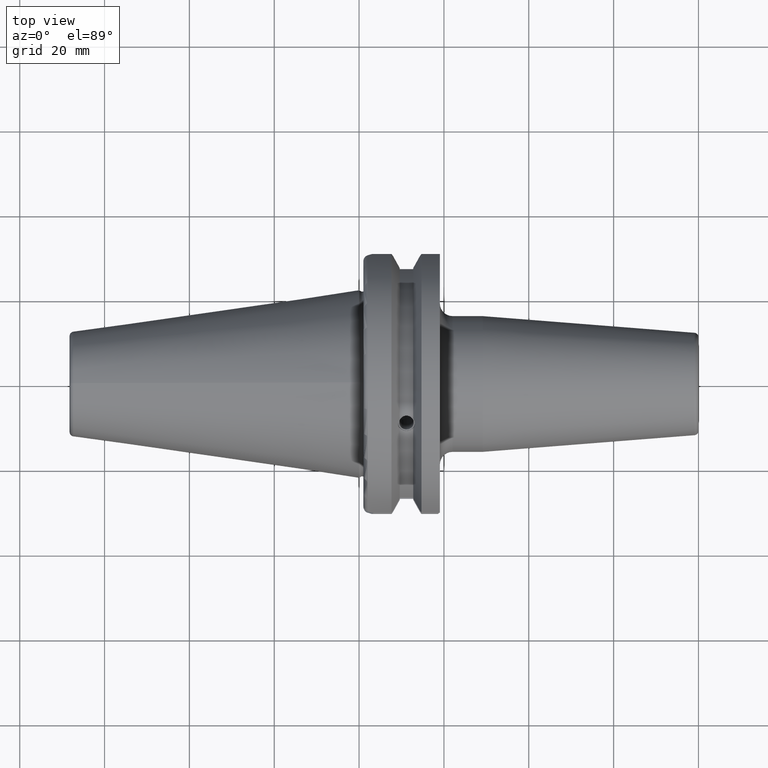
[diagram: clean part render]
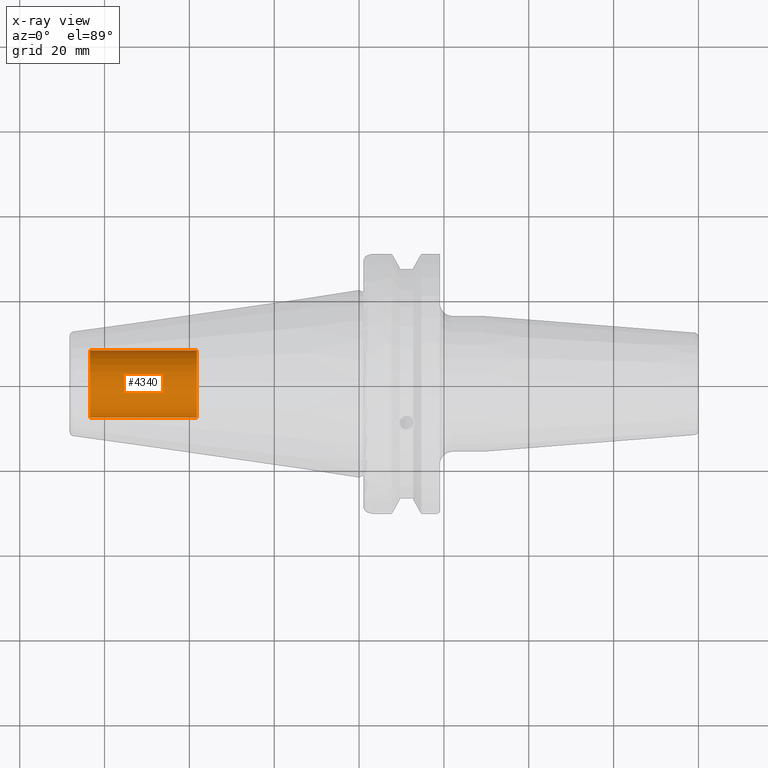
[diagram: x-ray — body ghosted, one internal face saturated and labeled with its STEP entity id]
A machine part, top view, then the same camera in x-ray: the body is ghosted and one INTERNAL B-rep face — a face not visible from any outside direction — is saturated and labeled: STEP entity #4340.
In plain terms, the highlighted cylindrical surface (edge-blend (fillet) strip) has radius 7.9375 mm, axis along (-1, 0, 0).
Its self-contained STEP definition (entity closure, byte-faithful):
#4266=CARTESIAN_POINT('',(-6.345E1,0.E0,0.E0));
#4267=DIRECTION('',(1.E0,0.E0,0.E0));
#4268=DIRECTION('',(0.E0,1.E0,0.E0));
#4269=AXIS2_PLACEMENT_3D('',#4266,#4267,#4268);
#4271=DIRECTION('',(1.E0,0.E0,0.E0));
#4272=VECTOR('',#4271,2.52E1);
#4273=CARTESIAN_POINT('',(-6.345E1,-7.9375E0,0.E0));
#4274=LINE('',#4273,#4272);
#4275=DIRECTION('',(1.E0,0.E0,0.E0));
#4276=VECTOR('',#4275,2.52E1);
#4277=CARTESIAN_POINT('',(-6.345E1,7.9375E0,0.E0));
#4278=LINE('',#4277,#4276);
#4279=CARTESIAN_POINT('',(-3.825E1,0.E0,0.E0));
#4280=DIRECTION('',(1.E0,0.E0,0.E0));
#4281=DIRECTION('',(0.E0,1.E0,0.E0));
#4282=AXIS2_PLACEMENT_3D('',#4279,#4280,#4281);
#4299=CARTESIAN_POINT('',(-3.825E1,7.9375E0,0.E0));
#4300=CARTESIAN_POINT('',(-3.825E1,-7.9375E0,0.E0));
#4301=VERTEX_POINT('',#4299);
#4302=VERTEX_POINT('',#4300);
#4303=CARTESIAN_POINT('',(-6.345E1,7.9375E0,0.E0));
#4304=CARTESIAN_POINT('',(-6.345E1,-7.9375E0,0.E0));
#4305=VERTEX_POINT('',#4303);
#4306=VERTEX_POINT('',#4304);
#4327=CARTESIAN_POINT('',(-1.658367445015E1,0.E0,0.E0));
#4328=DIRECTION('',(-1.E0,0.E0,0.E0));
#4329=DIRECTION('',(0.E0,1.E0,0.E0));
#4330=AXIS2_PLACEMENT_3D('',#4327,#4328,#4329);
#4331=CYLINDRICAL_SURFACE('',#4330,7.9375E0);
#4333=ORIENTED_EDGE('',*,*,#4332,.T.);
#4334=ORIENTED_EDGE('',*,*,#4322,.T.);
#4336=ORIENTED_EDGE('',*,*,#4335,.F.);
#4337=ORIENTED_EDGE('',*,*,#4318,.F.);
#4338=EDGE_LOOP('',(#4333,#4334,#4336,#4337));
#4339=FACE_OUTER_BOUND('',#4338,.F.);
#4340=ADVANCED_FACE('',(#4339),#4331,.F.);
#4270=CIRCLE('',#4269,7.9375E0);
#4283=CIRCLE('',#4282,7.9375E0);
#4318=EDGE_CURVE('',#4305,#4301,#4278,.T.);
#4322=EDGE_CURVE('',#4306,#4302,#4274,.T.);
#4332=EDGE_CURVE('',#4305,#4306,#4270,.T.);
#4335=EDGE_CURVE('',#4301,#4302,#4283,.T.);